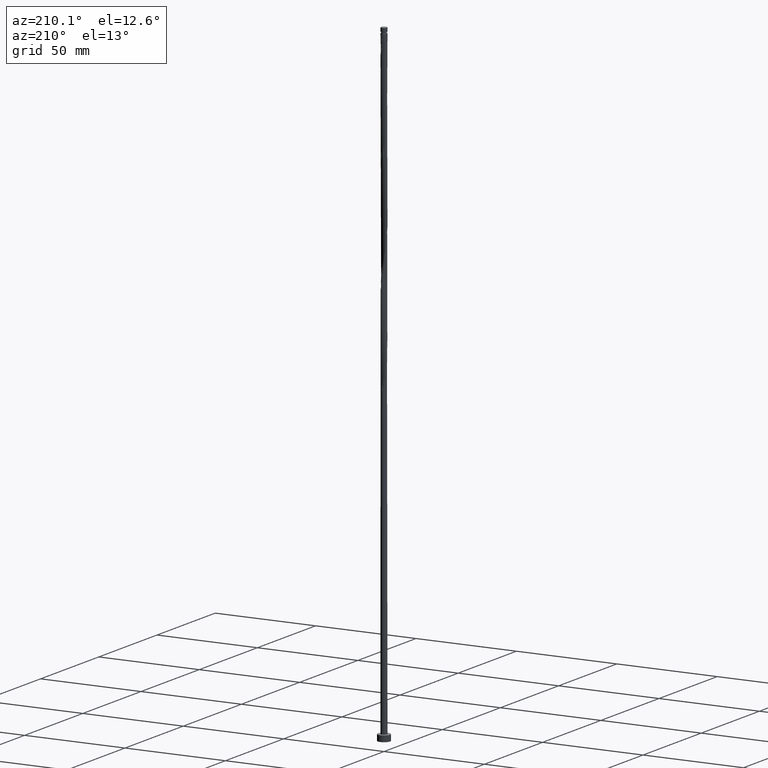
[diagram: clean part render]
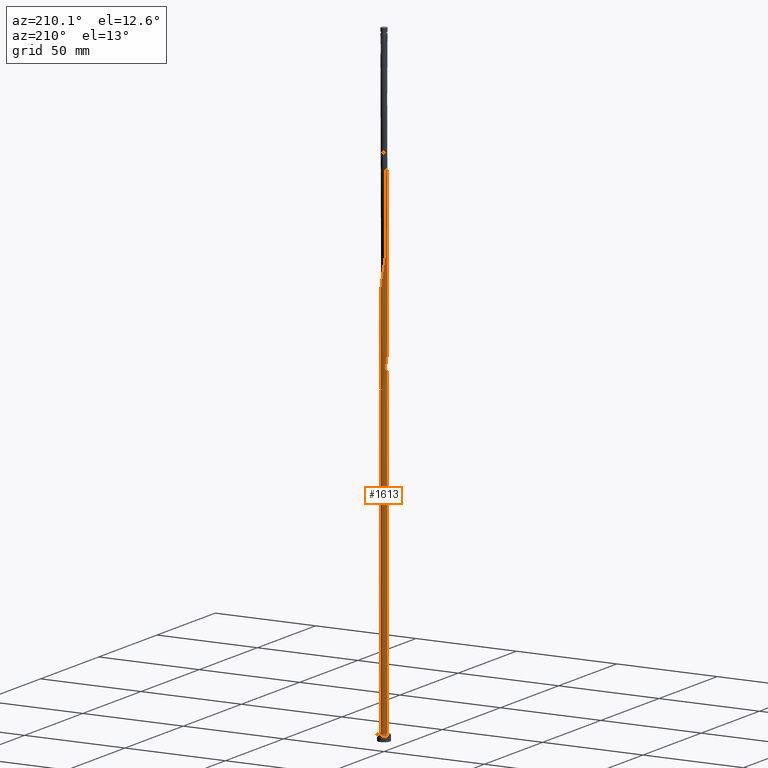
[diagram: same view with one face highlighted and labeled with its STEP entity id]
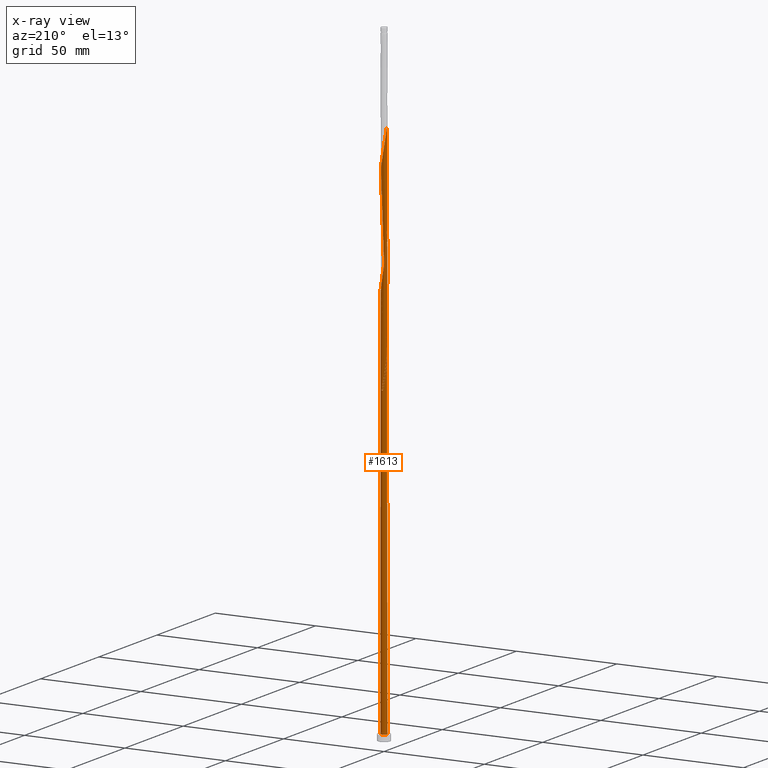
[diagram: x-ray of the same camera — body ghosted, the highlighted face saturated]
A machine part, auxiliary view. The second image highlights one B-rep face of the part: STEP entity #1613.
The next image is the same camera in x-ray: the body ghosted, the highlighted face saturated — about 0% of this face is hidden behind the body in this view.
In plain terms, the highlighted cylindrical surface (bore or boss wall) has radius 1.5 mm, axis along (-0, -0, -1).
Its self-contained STEP definition (entity closure, byte-faithful):
#5 = EDGE_CURVE ( 'NONE', #614, #560, #1266, .T. ) ;
#9 = CARTESIAN_POINT ( 'NONE',  ( 0.3688732850666848195, 1.453936896692603620, 203.7206648198285563 ) ) ;
#13 = CARTESIAN_POINT ( 'NONE',  ( -0.8336198860243083653, 1.258428411250604562, 161.5331648198284995 ) ) ;
#18 = EDGE_CURVE ( 'NONE', #997, #614, #288, .T. ) ;
#20 = CARTESIAN_POINT ( 'NONE',  ( -0.6181180803274353153, 1.366722370773352457, 209.3456648198286132 ) ) ;
#30 = CARTESIAN_POINT ( 'NONE',  ( 0.1328670094788250988, -1.503632447910746128, 180.2831648198285279 ) ) ;
#36 = LINE ( 'NONE', #323, #1706 ) ;
#41 = CARTESIAN_POINT ( 'NONE',  ( 0.2984962311319884765, -1.470000000000001972, 181.2206648198285279 ) ) ;
#47 = CARTESIAN_POINT ( 'NONE',  ( -1.500000000000002665, 0.01804934574958362570, 271.3207850536974775 ) ) ;
#55 = DIRECTION ( 'NONE',  ( -1.000000000000000000, 0.000000000000000000, 0.000000000000000000 ) ) ;
#63 = CARTESIAN_POINT ( 'NONE',  ( -1.412374859213528344, 0.5326926296462839439, 268.4081648198284711 ) ) ;
#69 = CARTESIAN_POINT ( 'NONE',  ( -1.436367552089257371, -0.4641254527851519929, 169.0331648198285279 ) ) ;
#78 = CARTESIAN_POINT ( 'NONE',  ( 0.9631829232239430549, 1.149903759629381739, 252.4706648198286132 ) ) ;
#97 = CARTESIAN_POINT ( 'NONE',  ( -1.500000000000002887, -2.087742571323353030E-15, 166.4211477419225957 ) ) ;
#118 = VERTEX_POINT ( 'NONE', #1152 ) ;
#138 = CARTESIAN_POINT ( 'NONE',  ( 1.436367552089257371, 0.4641254527851518819, 195.2831648198285848 ) ) ;
#141 = VERTEX_POINT ( 'NONE', #184 ) ;
#147 = CARTESIAN_POINT ( 'NONE',  ( 1.041379108008156917, -1.092745960423575635, 185.9081648198285563 ) ) ;
#159 = CARTESIAN_POINT ( 'NONE',  ( -0.6831562578352956550, 1.335401635232065676, 160.5956648198286132 ) ) ;
#160 = CARTESIAN_POINT ( 'NONE',  ( 1.297077189457447099, 0.7721107078697182491, 197.1581648198286132 ) ) ;
#161 = DIRECTION ( 'NONE',  ( 1.000000000000000000, 0.000000000000000000, 0.000000000000000000 ) ) ;
#176 = CARTESIAN_POINT ( 'NONE',  ( -0.4641254527851519929, 1.436367552089257371, 208.4081648198285848 ) ) ;
#177 = CARTESIAN_POINT ( 'NONE',  ( -1.495498934171678673, 0.2050539404870848070, 165.2831648198285279 ) ) ;
#184 = CARTESIAN_POINT ( 'NONE',  ( -1.500000000000000222, -1.722061120045993171E-15, 169.7701818977346306 ) ) ;
#189 = CARTESIAN_POINT ( 'NONE',  ( -1.495498934171678673, 0.2050539404870848070, 270.2831648198285848 ) ) ;
#196 = CARTESIAN_POINT ( 'NONE',  ( 0.000000000000000000, 0.000000000000000000, 315.0000000000000000 ) ) ;
#202 = CARTESIAN_POINT ( 'NONE',  ( -1.335401635232067674, 0.6831562578352969872, 162.4706648198285563 ) ) ;
#261 = CARTESIAN_POINT ( 'NONE',  ( 0.4641254527851519374, -1.436367552089257371, 234.6581648198285279 ) ) ;
#266 = CARTESIAN_POINT ( 'NONE',  ( -1.335401635232067674, 0.6831562578352969872, 214.9706648198285848 ) ) ;
#270 = ORIENTED_EDGE ( 'NONE', *, *, #771, .T. ) ;
#284 = CARTESIAN_POINT ( 'NONE',  ( -0.9631829232239410565, 1.149903759629380406, 162.4706648198285563 ) ) ;
#288 =( BOUNDED_CURVE ( )  B_SPLINE_CURVE ( 2, ( #1440, #863, #1161, #1720, #453, #463, #1583, #324, #202, #617, #1723, #177, #318, #308, #1140 ),
 .UNSPECIFIED., .F., .T. ) 
 B_SPLINE_CURVE_WITH_KNOTS ( ( 3, 2, 2, 2, 2, 2, 2, 3 ),
 ( 0.000000000000000000, 0.008928571428571396851, 0.01785714285714290472, 0.02678571428571430504, 0.03571428571428569843, 0.04464285714285709528, 0.05357142857142861009, 0.05453034012992206969 ),
 .UNSPECIFIED. ) 
 CURVE ( )  GEOMETRIC_REPRESENTATION_ITEM ( )  RATIONAL_B_SPLINE_CURVE ( ( 0.9090909090909848889, 0.9033747362666596503, 0.9090909090909848889, 0.9033747362666596503, 0.9090909090909848889, 0.9033747362666596503, 0.9090909090909848889, 0.9033747362666596503, 0.9090909090909848889, 0.9033747362666596503, 0.9090909090909848889, 0.9033747362666596503, 0.9090909090909848889, 0.9084770030215266745, 0.9079949616362550380 ) ) 
 REPRESENTATION_ITEM ( '' )  );
#291 = CARTESIAN_POINT ( 'NONE',  ( -0.2050539404870848070, -1.495498934171678673, 178.4081648198285848 ) ) ;
#298 = CARTESIAN_POINT ( 'NONE',  ( 1.499565691041212512, -0.03609346550412997207, 192.4706648198286416 ) ) ;
#307 = CARTESIAN_POINT ( 'NONE',  ( -1.149903759629381739, 0.9631829232239427219, 213.0956648198286132 ) ) ;
#308 = CARTESIAN_POINT ( 'NONE',  ( -1.500000000000002442, 0.01804934574958388244, 166.3207850536974206 ) ) ;
#314 = CARTESIAN_POINT ( 'NONE',  ( -1.149903759629381739, 0.9631829232239427219, 265.5956648198285848 ) ) ;
#318 = CARTESIAN_POINT ( 'NONE',  ( -1.499565691041212512, 0.03609346550412977778, 166.2206648198285848 ) ) ;
#323 = CARTESIAN_POINT ( 'NONE',  ( -1.500000000000000222, 0.000000000000000000, 315.0000000000000000 ) ) ;
#324 = CARTESIAN_POINT ( 'NONE',  ( -1.258428411250606338, 0.8336198860243095865, 161.5331648198285279 ) ) ;
#332 = CARTESIAN_POINT ( 'NONE',  ( 1.366722370773353123, 0.6181180803274352042, 248.7206648198286416 ) ) ;
#340 = CARTESIAN_POINT ( 'NONE',  ( -1.469999999999999751, 0.2984962311319885320, 168.0956648198285563 ) ) ;
#361 = AXIS2_PLACEMENT_3D ( 'NONE', #1270, #1146, #1563 ) ;
#366 = CARTESIAN_POINT ( 'NONE',  ( -0.5326926296462842769, -1.412374859213528344, 229.0331648198285563 ) ) ;
#376 = CARTESIAN_POINT ( 'NONE',  ( -0.9631829232239430549, -1.149903759629381961, 226.2206648198286416 ) ) ;
#398 = EDGE_LOOP ( 'NONE', ( #624, #1664, #406, #1564, #270, #412, #1025, #1268, #1545 ) ) ;
#400 = CIRCLE ( 'NONE', #1240, 1.500000000000000222 ) ;
#406 = ORIENTED_EDGE ( 'NONE', *, *, #662, .T. ) ;
#407 = CARTESIAN_POINT ( 'NONE',  ( -0.4641254527851519929, 1.436367552089257371, 260.9081648198285279 ) ) ;
#410 = CARTESIAN_POINT ( 'NONE',  ( 1.503632447910746128, 0.1328670094788250156, 193.4081648198285279 ) ) ;
#412 = ORIENTED_EDGE ( 'NONE', *, *, #662, .F. ) ;
#418 = CARTESIAN_POINT ( 'NONE',  ( 0.8336198860243099196, 1.258428411250606116, 200.9081648198285279 ) ) ;
#419 = DIRECTION ( 'NONE',  ( -0.000000000000000000, -0.000000000000000000, -1.000000000000000000 ) ) ;
#426 = CARTESIAN_POINT ( 'NONE',  ( 0.03609346550413014554, 1.499565691041212512, 205.5956648198285848 ) ) ;
#431 = CARTESIAN_POINT ( 'NONE',  ( 1.258428411250606116, -0.8336198860243099196, 240.2831648198284995 ) ) ;
#439 = CARTESIAN_POINT ( 'NONE',  ( 1.470000000000001972, 0.2984962311319883099, 194.3456648198285563 ) ) ;
#448 = CARTESIAN_POINT ( 'NONE',  ( -0.2984962311319881989, 1.470000000000001972, 207.4706648198285563 ) ) ;
#452 = CYLINDRICAL_SURFACE ( 'NONE', #1433, 1.500000000000000222 ) ;
#453 = CARTESIAN_POINT ( 'NONE',  ( -0.9067449079389379163, 1.194911574940511922, 158.7206648198285279 ) ) ;
#461 = CARTESIAN_POINT ( 'NONE',  ( 1.500000000000000222, 0.000000000000000000, 3.000000000000000000 ) ) ;
#463 = CARTESIAN_POINT ( 'NONE',  ( -1.041379108008157139, 1.092745960423575635, 159.6581648198284995 ) ) ;
#473 = CARTESIAN_POINT ( 'NONE',  ( -1.041379108008157139, 1.092745960423575635, 264.6581648198285848 ) ) ;
#485 = CARTESIAN_POINT ( 'NONE',  ( -1.092745960423575635, -1.041379108008156917, 172.7831648198285563 ) ) ;
#488 = CARTESIAN_POINT ( 'NONE',  ( -0.5326926296462831667, 1.412374859213526568, 159.6581648198285563 ) ) ;
#495 = CARTESIAN_POINT ( 'NONE',  ( 0.03609346550413014554, 1.499565691041212512, 258.0956648198286416 ) ) ;
#513 = CARTESIAN_POINT ( 'NONE',  ( -0.3688732850666835983, 1.453936896692601621, 158.7206648198285279 ) ) ;
#520 = CARTESIAN_POINT ( 'NONE',  ( -0.03609346550412946553, 1.499565691041210069, 156.8456648198285848 ) ) ;
#527 = EDGE_CURVE ( 'NONE', #141, #118, #1093, .T. ) ;
#553 = CARTESIAN_POINT ( 'NONE',  ( 1.092745960423575635, 1.041379108008156695, 199.0331648198284995 ) ) ;
#560 = VERTEX_POINT ( 'NONE', #642 ) ;
#563 = CARTESIAN_POINT ( 'NONE',  ( 0.2050539404870850846, 1.495498934171678229, 204.6581648198285279 ) ) ;
#576 = CIRCLE ( 'NONE', #361, 1.500000000000000222 ) ;
#584 = CARTESIAN_POINT ( 'NONE',  ( 1.366722370773353123, 0.6181180803274352042, 196.2206648198286132 ) ) ;
#596 = CARTESIAN_POINT ( 'NONE',  ( 1.258428411250606116, -0.8336198860243099196, 187.7831648198285279 ) ) ;
#610 = VECTOR ( 'NONE', #419, 1000.000000000000000 ) ;
#614 = VERTEX_POINT ( 'NONE', #1507 ) ;
#617 = CARTESIAN_POINT ( 'NONE',  ( -1.412374859213528344, 0.5326926296462839439, 163.4081648198285563 ) ) ;
#624 = ORIENTED_EDGE ( 'NONE', *, *, #1694, .F. ) ;
#632 = CARTESIAN_POINT ( 'NONE',  ( 1.495498934171678229, -0.2050539404870850013, 244.0331648198285563 ) ) ;
#633 = CARTESIAN_POINT ( 'NONE',  ( -1.366722370773352457, -0.6181180803274352042, 169.9706648198285563 ) ) ;
#642 = CARTESIAN_POINT ( 'NONE',  ( -1.500000000000002442, 2.238866028228796796E-16, 271.4211477419224821 ) ) ;
#659 = CARTESIAN_POINT ( 'NONE',  ( 0.2984962311319889205, 1.469999999999999973, 154.9706648198285848 ) ) ;
#662 = EDGE_CURVE ( 'NONE', #614, #989, #1681, .T. ) ;
#683 = CARTESIAN_POINT ( 'NONE',  ( -1.194911574940511922, -0.9067449079389379163, 224.3456648198285563 ) ) ;
#697 = CIRCLE ( 'NONE', #1423, 1.500000000000000222 ) ;
#715 = CARTESIAN_POINT ( 'NONE',  ( -1.503632447910746128, -0.1328670094788251543, 219.6581648198284995 ) ) ;
#724 = CARTESIAN_POINT ( 'NONE',  ( 0.7721107078697182491, -1.297077189457447099, 184.0331648198285848 ) ) ;
#736 = CARTESIAN_POINT ( 'NONE',  ( -0.2984962311319881989, 1.470000000000001972, 259.9706648198285848 ) ) ;
#754 = CARTESIAN_POINT ( 'NONE',  ( 0.8336198860243099196, 1.258428411250606116, 253.4081648198285279 ) ) ;
#764 = CARTESIAN_POINT ( 'NONE',  ( 1.194911574940512144, 0.9067449079389376942, 250.5956648198285848 ) ) ;
#771 = EDGE_CURVE ( 'NONE', #1561, #989, #400, .T. ) ;
#774 = CARTESIAN_POINT ( 'NONE',  ( 1.503632447910746128, 0.1328670094788250156, 245.9081648198285279 ) ) ;
#796 = CARTESIAN_POINT ( 'NONE',  ( -0.6831562578352973203, -1.335401635232067230, 228.0956648198285848 ) ) ;
#814 = CARTESIAN_POINT ( 'NONE',  ( 0.000000000000000000, 0.000000000000000000, 3.000000000000000000 ) ) ;
#822 = CARTESIAN_POINT ( 'NONE',  ( -1.092745960423575635, -1.041379108008156917, 225.2831648198284995 ) ) ;
#826 = CARTESIAN_POINT ( 'NONE',  ( 0.9067449079389376942, -1.194911574940511922, 237.4706648198286132 ) ) ;
#833 = CARTESIAN_POINT ( 'NONE',  ( 1.149903759629381739, -0.9631829232239430549, 239.3456648198285848 ) ) ;
#841 = CARTESIAN_POINT ( 'NONE',  ( 0.5326926296462844990, 1.412374859213528122, 202.7831648198284995 ) ) ;
#844 = CARTESIAN_POINT ( 'NONE',  ( 1.412374859213528344, -0.5326926296462842769, 242.1581648198285563 ) ) ;
#850 = CARTESIAN_POINT ( 'NONE',  ( -1.495498934171678673, 0.2050539404870848070, 217.7831648198285563 ) ) ;
#851 = CARTESIAN_POINT ( 'NONE',  ( 0.000000000000000000, 0.000000000000000000, 3.000000000000000000 ) ) ;
#853 = EDGE_CURVE ( 'NONE', #989, #1561, #697, .T. ) ;
#861 = DIRECTION ( 'NONE',  ( -0.000000000000000000, -0.000000000000000000, -1.000000000000000000 ) ) ;
#863 = CARTESIAN_POINT ( 'NONE',  ( -0.4641254527851519929, 1.436367552089257371, 155.9081648198285848 ) ) ;
#866 = CARTESIAN_POINT ( 'NONE',  ( -1.041379108008157139, 1.092745960423575635, 212.1581648198285563 ) ) ;
#876 = CARTESIAN_POINT ( 'NONE',  ( -1.499565691041212512, 0.03609346550412977778, 271.2206648198286416 ) ) ;
#903 = CARTESIAN_POINT ( 'NONE',  ( 0.5326926296462844990, 1.412374859213528122, 255.2831648198285848 ) ) ;
#910 = CARTESIAN_POINT ( 'NONE',  ( -1.194911574940509480, 0.9067449079389366950, 164.3456648198284995 ) ) ;
#925 = CARTESIAN_POINT ( 'NONE',  ( -1.297077189457447099, -0.7721107078697182491, 223.4081648198285279 ) ) ;
#935 = CARTESIAN_POINT ( 'NONE',  ( -0.3688732850666847640, -1.453936896692603620, 229.9706648198285563 ) ) ;
#965 = CARTESIAN_POINT ( 'NONE',  ( -0.3688732850666847640, -1.453936896692603620, 177.4706648198285848 ) ) ;
#967 = CARTESIAN_POINT ( 'NONE',  ( 0.6181180803274352042, -1.366722370773352457, 235.5956648198285848 ) ) ;
#969 = CARTESIAN_POINT ( 'NONE',  ( -1.366722370773350237, 0.6181180803274346491, 166.2206648198285848 ) ) ;
#983 = CARTESIAN_POINT ( 'NONE',  ( -1.412374859213528344, 0.5326926296462839439, 215.9081648198285848 ) ) ;
#989 = VERTEX_POINT ( 'NONE', #1235 ) ;
#993 = CARTESIAN_POINT ( 'NONE',  ( -1.436367552089257371, -0.4641254527851519929, 221.5331648198285563 ) ) ;
#997 = VERTEX_POINT ( 'NONE', #1228 ) ;
#1003 = CARTESIAN_POINT ( 'NONE',  ( -0.6831562578352973203, -1.335401635232067230, 175.5956648198285848 ) ) ;
#1007 = CARTESIAN_POINT ( 'NONE',  ( 0.7721107078697182491, -1.297077189457447099, 236.5331648198286416 ) ) ;
#1011 = DIRECTION ( 'NONE',  ( -0.000000000000000000, -0.000000000000000000, -1.000000000000000000 ) ) ;
#1025 = ORIENTED_EDGE ( 'NONE', *, *, #18, .F. ) ;
#1029 = CARTESIAN_POINT ( 'NONE',  ( -1.453936896692604064, 0.3688732850666845975, 269.3456648198285848 ) ) ;
#1032 = CARTESIAN_POINT ( 'NONE',  ( -1.499999999999999334, 0.1507556722888863943, 168.9319108187709730 ) ) ;
#1047 = CARTESIAN_POINT ( 'NONE',  ( -0.9631829232239430549, -1.149903759629381961, 173.7206648198285848 ) ) ;
#1055 = CARTESIAN_POINT ( 'NONE',  ( -0.1328670094788249323, 1.503632447910746128, 259.0331648198284711 ) ) ;
#1070 = CARTESIAN_POINT ( 'NONE',  ( -1.500000000000001998, -0.1507556722888839240, 167.2594188208861112 ) ) ;
#1093 =( BOUNDED_CURVE ( )  B_SPLINE_CURVE ( 2, ( #1586, #1032, #340, #1461, #969, #1630, #910, #1470, #284, #13, #159, #488, #513, #1491, #520, #1782, #659 ),
 .UNSPECIFIED., .F., .T. ) 
 B_SPLINE_CURVE_WITH_KNOTS ( ( 3, 2, 2, 2, 2, 2, 2, 2, 3 ),
 ( 0.9295303401299221946, 0.9375000000000000000, 0.9464285714285713969, 0.9553571428571429047, 0.9642857142857143016, 0.9732142857142856984, 0.9821428571428570953, 0.9910714285714286031, 1.000000000000000000 ),
 .UNSPECIFIED. ) 
 CURVE ( )  GEOMETRIC_REPRESENTATION_ITEM ( )  RATIONAL_B_SPLINE_CURVE ( ( 0.9079949616362491538, 0.9039886423361123136, 0.9090909090909792267, 0.9033747362666539882, 0.9090909090909792267, 0.9033747362666539882, 0.9090909090909792267, 0.9033747362666539882, 0.9090909090909792267, 0.9033747362666539882, 0.9090909090909792267, 0.9033747362666539882, 0.9090909090909792267, 0.9033747362666539882, 0.9090909090909792267, 0.9033747362666539882, 0.9090909090909792267 ) ) 
 REPRESENTATION_ITEM ( '' )  );
#1111 = CARTESIAN_POINT ( 'NONE',  ( -0.03609346550412988880, -1.499565691041212512, 179.3456648198285279 ) ) ;
#1115 = CARTESIAN_POINT ( 'NONE',  ( 1.335401635232067230, -0.6831562578352973203, 241.2206648198286416 ) ) ;
#1122 = CARTESIAN_POINT ( 'NONE',  ( -0.1328670094788249323, 1.503632447910746128, 206.5331648198285563 ) ) ;
#1131 = CARTESIAN_POINT ( 'NONE',  ( -1.470000000000001972, -0.2984962311319885320, 220.5956648198286132 ) ) ;
#1132 = DIRECTION ( 'NONE',  ( 0.000000000000000000, 0.000000000000000000, 1.000000000000000000 ) ) ;
#1139 = CARTESIAN_POINT ( 'NONE',  ( 0.9631829232239430549, 1.149903759629381739, 199.9706648198286416 ) ) ;
#1140 = CARTESIAN_POINT ( 'NONE',  ( -1.500000000000002887, -2.087742571323353030E-15, 166.4211477419225957 ) ) ;
#1146 = DIRECTION ( 'NONE',  ( 0.000000000000000000, -0.000000000000000000, -1.000000000000000000 ) ) ;
#1148 = CARTESIAN_POINT ( 'NONE',  ( -1.500000000000002220, 2.238866028228796796E-16, 271.4211477419224821 ) ) ;
#1151 = CARTESIAN_POINT ( 'NONE',  ( 0.9067449079389376942, -1.194911574940511922, 184.9706648198285848 ) ) ;
#1152 = CARTESIAN_POINT ( 'NONE',  ( 0.2984962311319889205, 1.469999999999999973, 154.9706648198285563 ) ) ;
#1161 = CARTESIAN_POINT ( 'NONE',  ( -0.6181180803274353153, 1.366722370773352457, 156.8456648198285563 ) ) ;
#1183 = CARTESIAN_POINT ( 'NONE',  ( -1.297077189457447099, -0.7721107078697182491, 170.9081648198285848 ) ) ;
#1196 = CARTESIAN_POINT ( 'NONE',  ( -0.8336198860243095865, -1.258428411250606116, 227.1581648198285279 ) ) ;
#1212 = CARTESIAN_POINT ( 'NONE',  ( -0.03609346550412988880, -1.499565691041212512, 231.8456648198286132 ) ) ;
#1228 = CARTESIAN_POINT ( 'NONE',  ( -0.2984962311319883099, 1.470000000000001750, 154.9706648198285563 ) ) ;
#1235 = CARTESIAN_POINT ( 'NONE',  ( -1.500000000000000222, 0.000000000000000000, 3.000000000000000000 ) ) ;
#1240 = AXIS2_PLACEMENT_3D ( 'NONE', #851, #1409, #161 ) ;
#1253 = CARTESIAN_POINT ( 'NONE',  ( 1.453936896692603620, -0.3688732850666848195, 190.5956648198285279 ) ) ;
#1257 = CARTESIAN_POINT ( 'NONE',  ( 1.041379108008156917, -1.092745960423575635, 238.4081648198284995 ) ) ;
#1262 = CARTESIAN_POINT ( 'NONE',  ( 1.194911574940512144, 0.9067449079389376942, 198.0956648198286132 ) ) ;
#1266 =( BOUNDED_CURVE ( )  B_SPLINE_CURVE ( 2, ( #97, #1070, #1627, #69, #633, #1183, #1745, #485, #1047, #1604, #1003, #1418, #965, #291, #1111, #30, #41, #1395, #1285, #724, #1151, #147, #1569, #596, #1274, #1690, #1253, #1703, #298, #410, #439, #138, #584, #160, #1262, #553, #1139, #418, #1538, #841, #9, #563, #426, #1122, #448, #176, #20, #1530, #1680, #866, #307, #1429, #266, #983, #1549, #850, #1408, #715, #1131, #993, #1367, #925, #683, #822, #376, #1196, #796, #366, #935, #1487, #1212, #1772, #1796, #261, #967, #1007, #826, #1257, #833, #431, #1115, #844, #1552, #632, #1590, #774, #1597, #1327, #332, #1300, #764, #1434, #78, #754, #1308, #903, #1753, #1319, #495, #1055, #736, #407, #1729, #1424, #1282, #473, #314, #1450, #1293, #63, #1029, #189, #876, #47, #1148 ),
 .UNSPECIFIED., .F., .T. ) 
 B_SPLINE_CURVE_WITH_KNOTS ( ( 3, 2, 2, 2, 2, 2, 2, 2, 2, 2, 2, 2, 2, 2, 2, 2, 2, 2, 2, 2, 2, 2, 2, 2, 2, 2, 2, 2, 2, 2, 2, 2, 2, 2, 2, 2, 2, 2, 2, 2, 2, 2, 2, 2, 2, 2, 2, 2, 2, 2, 2, 2, 2, 2, 2, 2, 2, 3 ),
 ( 0.05453034012992206969, 0.06250000000000000000, 0.07142857142857139685, 0.08035714285714290472, 0.08928571428571430157, 0.09821428571428569843, 0.1071428571428570953, 0.1160714285714286031, 0.1250000000000000000, 0.1339285714285713969, 0.1428571428571429047, 0.1517857142857143016, 0.1607142857142856984, 0.1696428571428570953, 0.1785714285714286031, 0.1875000000000000000, 0.1964285714285713969, 0.2053571428571429047, 0.2142857142857143016, 0.2232142857142856984, 0.2321428571428570953, 0.2410714285714286031, 0.2500000000000000000, 0.2589285714285713969, 0.2678571428571429047, 0.2767857142857143016, 0.2857142857142856984, 0.2946428571428570953, 0.3035714285714286031, 0.3125000000000000000, 0.3214285714285713969, 0.3303571428571429047, 0.3392857142857143016, 0.3482142857142856984, 0.3571428571428570953, 0.3660714285714286031, 0.3750000000000000000, 0.3839285714285713969, 0.3928571428571429047, 0.4017857142857143016, 0.4107142857142856984, 0.4196428571428570953, 0.4285714285714286031, 0.4375000000000000000, 0.4464285714285713969, 0.4553571428571429047, 0.4642857142857143016, 0.4732142857142856984, 0.4821428571428570953, 0.4910714285714286031, 0.5000000000000000000, 0.5089285714285713969, 0.5178571428571427937, 0.5267857142857143016, 0.5357142857142856984, 0.5446428571428572063, 0.5535714285714286031, 0.5545303401299220836 ),
 .UNSPECIFIED. ) 
 CURVE ( )  GEOMETRIC_REPRESENTATION_ITEM ( )  RATIONAL_B_SPLINE_CURVE ( ( 0.9079949616362550380, 0.9039886423361178647, 0.9090909090909848889, 0.9033747362666596503, 0.9090909090909848889, 0.9033747362666596503, 0.9090909090909848889, 0.9033747362666596503, 0.9090909090909848889, 0.9033747362666596503, 0.9090909090909848889, 0.9033747362666596503, 0.9090909090909848889, 0.9033747362666596503, 0.9090909090909848889, 0.9033747362666596503, 0.9090909090909848889, 0.9033747362666596503, 0.9090909090909848889, 0.9033747362666596503, 0.9090909090909848889, 0.9033747362666596503, 0.9090909090909848889, 0.9033747362666596503, 0.9090909090909848889, 0.9033747362666596503, 0.9090909090909848889, 0.9033747362666596503, 0.9090909090909848889, 0.9033747362666596503, 0.9090909090909848889, 0.9033747362666596503, 0.9090909090909848889, 0.9033747362666596503, 0.9090909090909848889, 0.9033747362666596503, 0.9090909090909848889, 0.9033747362666596503, 0.9090909090909848889, 0.9033747362666596503, 0.9090909090909848889, 0.9033747362666596503, 0.9090909090909848889, 0.9033747362666596503, 0.9090909090909848889, 0.9033747362666596503, 0.9090909090909848889, 0.9033747362666596503, 0.9090909090909848889, 0.9033747362666596503, 0.9090909090909848889, 0.9033747362666596503, 0.9090909090909848889, 0.9033747362666596503, 0.9090909090909848889, 0.9033747362666596503, 0.9090909090909848889, 0.9033747362666596503, 0.9090909090909848889, 0.9033747362666596503, 0.9090909090909848889, 0.9033747362666596503, 0.9090909090909848889, 0.9033747362666596503, 0.9090909090909848889, 0.9033747362666596503, 0.9090909090909848889, 0.9033747362666596503, 0.9090909090909848889, 0.9033747362666596503, 0.9090909090909848889, 0.9033747362666596503, 0.9090909090909848889, 0.9033747362666596503, 0.9090909090909848889, 0.9033747362666596503, 0.9090909090909848889, 0.9033747362666596503, 0.9090909090909848889, 0.9033747362666596503, 0.9090909090909848889, 0.9033747362666596503, 0.9090909090909848889, 0.9033747362666596503, 0.9090909090909848889, 0.9033747362666596503, 0.9090909090909848889, 0.9033747362666596503, 0.9090909090909848889, 0.9033747362666596503, 0.9090909090909848889, 0.9033747362666596503, 0.9090909090909848889, 0.9033747362666596503, 0.9090909090909848889, 0.9033747362666596503, 0.9090909090909848889, 0.9033747362666596503, 0.9090909090909848889, 0.9033747362666596503, 0.9090909090909848889, 0.9033747362666596503, 0.9090909090909848889, 0.9033747362666596503, 0.9090909090909848889, 0.9033747362666596503, 0.9090909090909848889, 0.9033747362666596503, 0.9090909090909848889, 0.9033747362666596503, 0.9090909090909848889, 0.9033747362666596503, 0.9090909090909848889, 0.9084770030215265635, 0.9079949616362548159 ) ) 
 REPRESENTATION_ITEM ( '' )  );
#1268 = ORIENTED_EDGE ( 'NONE', *, *, #1622, .T. ) ;
#1270 = CARTESIAN_POINT ( 'NONE',  ( 0.000000000000000000, 0.000000000000000000, 154.9706648198285563 ) ) ;
#1274 = CARTESIAN_POINT ( 'NONE',  ( 1.335401635232067230, -0.6831562578352973203, 188.7206648198286132 ) ) ;
#1282 = CARTESIAN_POINT ( 'NONE',  ( -0.9067449079389379163, 1.194911574940511922, 263.7206648198285848 ) ) ;
#1285 = CARTESIAN_POINT ( 'NONE',  ( 0.6181180803274352042, -1.366722370773352457, 183.0956648198285563 ) ) ;
#1293 = CARTESIAN_POINT ( 'NONE',  ( -1.335401635232067674, 0.6831562578352969872, 267.4706648198286416 ) ) ;
#1300 = CARTESIAN_POINT ( 'NONE',  ( 1.297077189457447099, 0.7721107078697182491, 249.6581648198285848 ) ) ;
#1303 = FACE_OUTER_BOUND ( 'NONE', #398, .T. ) ;
#1308 = CARTESIAN_POINT ( 'NONE',  ( 0.6831562578352973203, 1.335401635232067230, 254.3456648198286132 ) ) ;
#1319 = CARTESIAN_POINT ( 'NONE',  ( 0.2050539404870850846, 1.495498934171678229, 257.1581648198286416 ) ) ;
#1327 = CARTESIAN_POINT ( 'NONE',  ( 1.436367552089257371, 0.4641254527851518819, 247.7831648198285279 ) ) ;
#1367 = CARTESIAN_POINT ( 'NONE',  ( -1.366722370773352457, -0.6181180803274352042, 222.4706648198285848 ) ) ;
#1370 = DIRECTION ( 'NONE',  ( 1.000000000000000000, 0.000000000000000000, 0.000000000000000000 ) ) ;
#1395 = CARTESIAN_POINT ( 'NONE',  ( 0.4641254527851519374, -1.436367552089257371, 182.1581648198285279 ) ) ;
#1408 = CARTESIAN_POINT ( 'NONE',  ( -1.499565691041212512, 0.03609346550412977778, 218.7206648198285563 ) ) ;
#1409 = DIRECTION ( 'NONE',  ( 0.000000000000000000, 0.000000000000000000, 1.000000000000000000 ) ) ;
#1418 = CARTESIAN_POINT ( 'NONE',  ( -0.5326926296462842769, -1.412374859213528344, 176.5331648198286132 ) ) ;
#1423 = AXIS2_PLACEMENT_3D ( 'NONE', #814, #1132, #1370 ) ;
#1424 = CARTESIAN_POINT ( 'NONE',  ( -0.7721107078697185822, 1.297077189457447099, 262.7831648198285279 ) ) ;
#1429 = CARTESIAN_POINT ( 'NONE',  ( -1.258428411250606338, 0.8336198860243095865, 214.0331648198285279 ) ) ;
#1433 = AXIS2_PLACEMENT_3D ( 'NONE', #196, #1011, #55 ) ;
#1434 = CARTESIAN_POINT ( 'NONE',  ( 1.092745960423575635, 1.041379108008156695, 251.5331648198285563 ) ) ;
#1440 = CARTESIAN_POINT ( 'NONE',  ( -0.2984962311319883099, 1.470000000000001750, 154.9706648198285563 ) ) ;
#1450 = CARTESIAN_POINT ( 'NONE',  ( -1.258428411250606338, 0.8336198860243095865, 266.5331648198285279 ) ) ;
#1461 = CARTESIAN_POINT ( 'NONE',  ( -1.436367552089255151, 0.4641254527851517153, 167.1581648198285279 ) ) ;
#1470 = CARTESIAN_POINT ( 'NONE',  ( -1.092745960423574081, 1.041379108008156029, 163.4081648198285563 ) ) ;
#1487 = CARTESIAN_POINT ( 'NONE',  ( -0.2050539404870848070, -1.495498934171678673, 230.9081648198285279 ) ) ;
#1491 = CARTESIAN_POINT ( 'NONE',  ( -0.2050539404870842242, 1.495498934171677119, 157.7831648198285279 ) ) ;
#1507 = CARTESIAN_POINT ( 'NONE',  ( -1.500000000000002887, -2.087742571323353030E-15, 166.4211477419225673 ) ) ;
#1530 = CARTESIAN_POINT ( 'NONE',  ( -0.7721107078697185822, 1.297077189457447099, 210.2831648198285848 ) ) ;
#1538 = CARTESIAN_POINT ( 'NONE',  ( 0.6831562578352973203, 1.335401635232067230, 201.8456648198285848 ) ) ;
#1545 = ORIENTED_EDGE ( 'NONE', *, *, #527, .F. ) ;
#1549 = CARTESIAN_POINT ( 'NONE',  ( -1.453936896692604064, 0.3688732850666845975, 216.8456648198285848 ) ) ;
#1552 = CARTESIAN_POINT ( 'NONE',  ( 1.453936896692603620, -0.3688732850666848195, 243.0956648198285848 ) ) ;
#1561 = VERTEX_POINT ( 'NONE', #461 ) ;
#1563 = DIRECTION ( 'NONE',  ( -1.000000000000000000, 0.000000000000000000, 0.000000000000000000 ) ) ;
#1564 = ORIENTED_EDGE ( 'NONE', *, *, #853, .T. ) ;
#1569 = CARTESIAN_POINT ( 'NONE',  ( 1.149903759629381739, -0.9631829232239430549, 186.8456648198285848 ) ) ;
#1583 = CARTESIAN_POINT ( 'NONE',  ( -1.149903759629381739, 0.9631829232239427219, 160.5956648198285848 ) ) ;
#1586 = CARTESIAN_POINT ( 'NONE',  ( -1.500000000000000222, -1.722061120045993171E-15, 169.7701818977346306 ) ) ;
#1590 = CARTESIAN_POINT ( 'NONE',  ( 1.499565691041212512, -0.03609346550412997207, 244.9706648198285563 ) ) ;
#1597 = CARTESIAN_POINT ( 'NONE',  ( 1.470000000000001972, 0.2984962311319883099, 246.8456648198286132 ) ) ;
#1604 = CARTESIAN_POINT ( 'NONE',  ( -0.8336198860243095865, -1.258428411250606116, 174.6581648198285563 ) ) ;
#1613 = ADVANCED_FACE ( 'NONE', ( #1303 ), #452, .T. ) ;
#1622 = EDGE_CURVE ( 'NONE', #997, #118, #576, .T. ) ;
#1627 = CARTESIAN_POINT ( 'NONE',  ( -1.470000000000001972, -0.2984962311319885320, 168.0956648198285848 ) ) ;
#1630 = CARTESIAN_POINT ( 'NONE',  ( -1.297077189457445323, 0.7721107078697178050, 165.2831648198284995 ) ) ;
#1662 = CARTESIAN_POINT ( 'NONE',  ( -1.500000000000000222, 0.000000000000000000, 315.0000000000000000 ) ) ;
#1664 = ORIENTED_EDGE ( 'NONE', *, *, #5, .F. ) ;
#1680 = CARTESIAN_POINT ( 'NONE',  ( -0.9067449079389379163, 1.194911574940511922, 211.2206648198285563 ) ) ;
#1681 = LINE ( 'NONE', #1662, #610 ) ;
#1690 = CARTESIAN_POINT ( 'NONE',  ( 1.412374859213528344, -0.5326926296462842769, 189.6581648198285563 ) ) ;
#1694 = EDGE_CURVE ( 'NONE', #560, #141, #36, .T. ) ;
#1703 = CARTESIAN_POINT ( 'NONE',  ( 1.495498934171678229, -0.2050539404870850013, 191.5331648198285848 ) ) ;
#1706 = VECTOR ( 'NONE', #861, 1000.000000000000000 ) ;
#1720 = CARTESIAN_POINT ( 'NONE',  ( -0.7721107078697185822, 1.297077189457447099, 157.7831648198285848 ) ) ;
#1723 = CARTESIAN_POINT ( 'NONE',  ( -1.453936896692604064, 0.3688732850666845975, 164.3456648198285279 ) ) ;
#1729 = CARTESIAN_POINT ( 'NONE',  ( -0.6181180803274353153, 1.366722370773352457, 261.8456648198286416 ) ) ;
#1745 = CARTESIAN_POINT ( 'NONE',  ( -1.194911574940511922, -0.9067449079389379163, 171.8456648198285848 ) ) ;
#1753 = CARTESIAN_POINT ( 'NONE',  ( 0.3688732850666848195, 1.453936896692603620, 256.2206648198285848 ) ) ;
#1772 = CARTESIAN_POINT ( 'NONE',  ( 0.1328670094788250988, -1.503632447910746128, 232.7831648198285563 ) ) ;
#1782 = CARTESIAN_POINT ( 'NONE',  ( 0.1328670094788252654, 1.503632447910743686, 155.9081648198285279 ) ) ;
#1796 = CARTESIAN_POINT ( 'NONE',  ( 0.2984962311319884765, -1.470000000000001972, 233.7206648198285848 ) ) ;